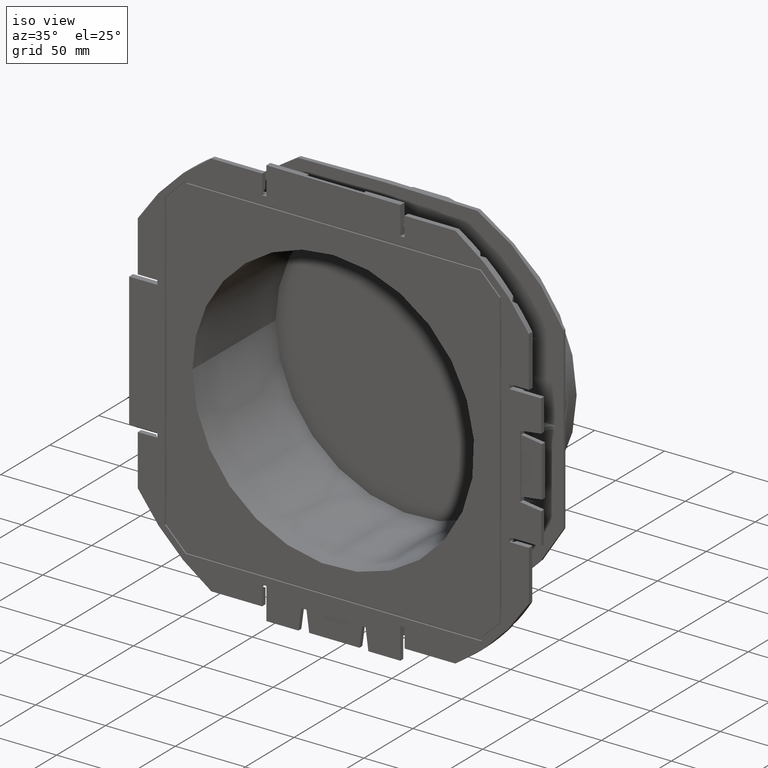
[diagram: clean part render]
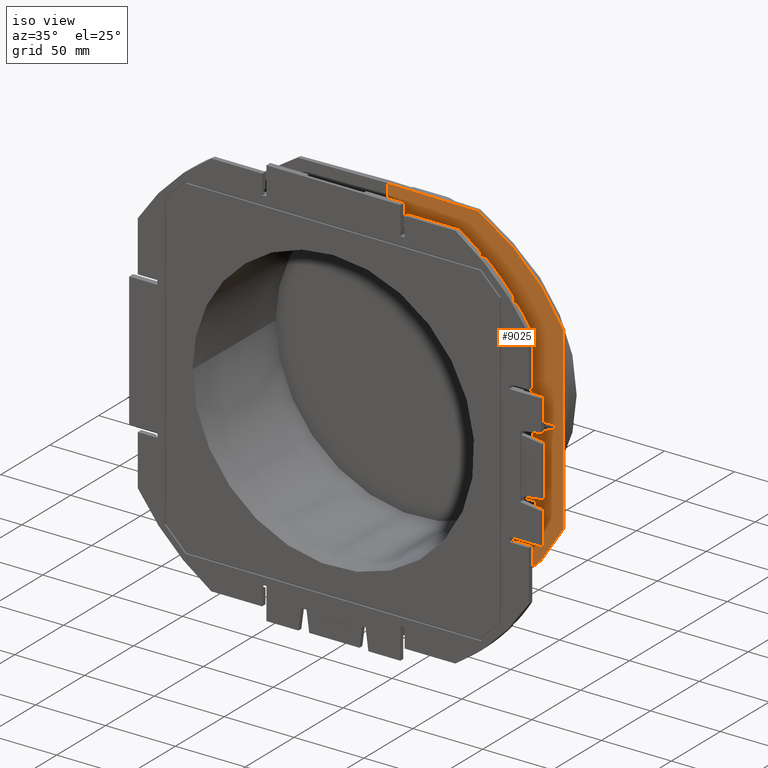
[diagram: same view with one face highlighted and labeled with its STEP entity id]
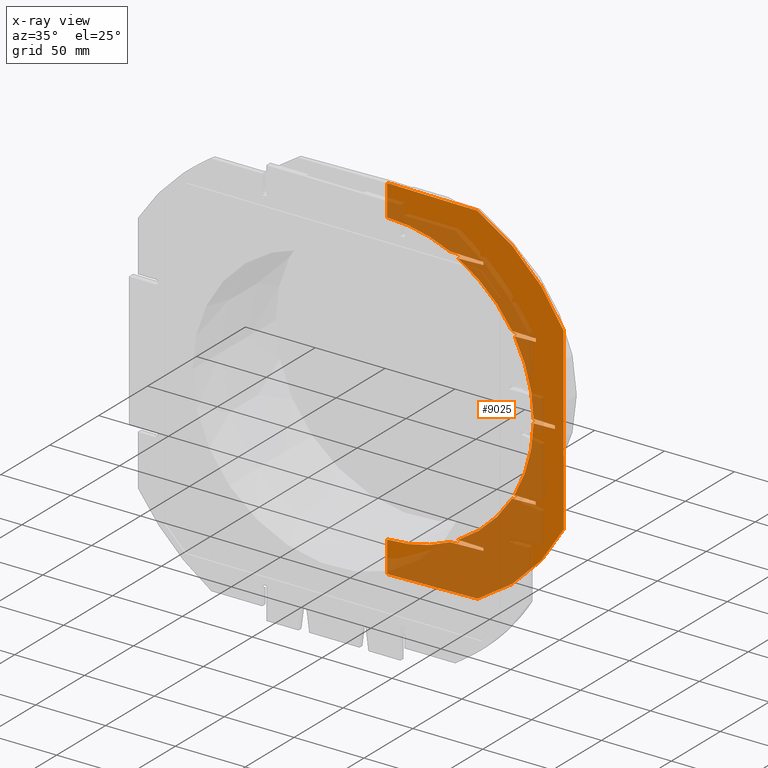
[diagram: x-ray of the same camera — body ghosted, the highlighted face saturated]
A machine part, iso view. The second image highlights one B-rep face of the part: STEP entity #9025.
The next image is the same camera in x-ray: the body ghosted, the highlighted face saturated — about 54% of this face is hidden behind the body in this view.
In plain terms, the highlighted planar face has unit normal (0.0087, -1, 0).
Its self-contained STEP definition (entity closure, byte-faithful):
#387=ELLIPSE('',#9682,104.153965863875,104.15);
#389=ELLIPSE('',#9684,104.153965863875,104.15);
#391=ELLIPSE('',#9686,104.153965863875,104.15);
#393=ELLIPSE('',#9688,104.153965863875,104.15);
#395=ELLIPSE('',#9690,104.153965863875,104.15);
#397=ELLIPSE('',#9692,104.153965863875,104.15);
#401=ELLIPSE('',#9716,141.005369052389,141.);
#402=ELLIPSE('',#9717,141.005369052389,141.);
#717=FACE_OUTER_BOUND('',#1218,.T.);
#1218=EDGE_LOOP('',(#6307,#6308,#6309,#6310,#6311,#6312,#6313,#6314,#6315,
#6316,#6317,#6318,#6319,#6320,#6321,#6322,#6323,#6324,#6325,#6326,#6327,
#6328,#6329,#6330,#6331,#6332,#6333,#6334));
#1941=LINE('',#15762,#2800);
#1955=LINE('',#15800,#2814);
#1992=LINE('',#15910,#2851);
#1997=LINE('',#15918,#2856);
#1998=LINE('',#15920,#2857);
#2001=LINE('',#15928,#2860);
#2005=LINE('',#15934,#2864);
#2007=LINE('',#15939,#2866);
#2008=LINE('',#15943,#2867);
#2009=LINE('',#15946,#2868);
#2010=LINE('',#15948,#2869);
#2011=LINE('',#15950,#2870);
#2012=LINE('',#15951,#2871);
#2013=LINE('',#15953,#2872);
#2014=LINE('',#15955,#2873);
#2015=LINE('',#15956,#2874);
#2016=LINE('',#15958,#2875);
#2017=LINE('',#15960,#2876);
#2018=LINE('',#15961,#2877);
#2019=LINE('',#15962,#2878);
#2800=VECTOR('',#10867,10.);
#2814=VECTOR('',#10893,10.);
#2851=VECTOR('',#10996,10.);
#2856=VECTOR('',#11003,10.);
#2857=VECTOR('',#11006,10.);
#2860=VECTOR('',#11013,10.);
#2864=VECTOR('',#11019,10.);
#2866=VECTOR('',#11025,10.);
#2867=VECTOR('',#11028,10.);
#2868=VECTOR('',#11031,10.);
#2869=VECTOR('',#11032,10.);
#2870=VECTOR('',#11033,10.);
#2871=VECTOR('',#11034,10.);
#2872=VECTOR('',#11035,10.);
#2873=VECTOR('',#11036,10.);
#2874=VECTOR('',#11037,10.);
#2875=VECTOR('',#11038,10.);
#2876=VECTOR('',#11039,10.);
#2877=VECTOR('',#11040,10.);
#2878=VECTOR('',#11041,10.);
#3890=VERTEX_POINT('',#15759);
#3891=VERTEX_POINT('',#15761);
#3908=VERTEX_POINT('',#15797);
#3909=VERTEX_POINT('',#15799);
#3918=VERTEX_POINT('',#15821);
#3921=VERTEX_POINT('',#15827);
#3922=VERTEX_POINT('',#15829);
#3925=VERTEX_POINT('',#15835);
#3926=VERTEX_POINT('',#15837);
#3929=VERTEX_POINT('',#15843);
#3930=VERTEX_POINT('',#15845);
#3933=VERTEX_POINT('',#15851);
#3934=VERTEX_POINT('',#15853);
#3937=VERTEX_POINT('',#15859);
#3948=VERTEX_POINT('',#15908);
#3949=VERTEX_POINT('',#15909);
#3953=VERTEX_POINT('',#15925);
#3954=VERTEX_POINT('',#15927);
#3956=VERTEX_POINT('',#15938);
#3957=VERTEX_POINT('',#15940);
#3958=VERTEX_POINT('',#15942);
#3959=VERTEX_POINT('',#15944);
#3960=VERTEX_POINT('',#15947);
#3961=VERTEX_POINT('',#15949);
#3962=VERTEX_POINT('',#15952);
#3963=VERTEX_POINT('',#15954);
#3964=VERTEX_POINT('',#15957);
#3965=VERTEX_POINT('',#15959);
#4793=EDGE_CURVE('',#3891,#3890,#1941,.T.);
#4813=EDGE_CURVE('',#3909,#3908,#1955,.T.);
#4825=EDGE_CURVE('',#3918,#3891,#387,.T.);
#4829=EDGE_CURVE('',#3922,#3921,#389,.T.);
#4833=EDGE_CURVE('',#3926,#3925,#391,.T.);
#4837=EDGE_CURVE('',#3930,#3929,#393,.T.);
#4841=EDGE_CURVE('',#3934,#3933,#395,.T.);
#4845=EDGE_CURVE('',#3908,#3937,#397,.T.);
#4870=EDGE_CURVE('',#3948,#3949,#1992,.T.);
#4875=EDGE_CURVE('',#3949,#3918,#1997,.T.);
#4876=EDGE_CURVE('',#3921,#3948,#1998,.T.);
#4879=EDGE_CURVE('',#3954,#3953,#2001,.T.);
#4883=EDGE_CURVE('',#3953,#3922,#2005,.T.);
#4885=EDGE_CURVE('',#3956,#3890,#2007,.T.);
#4886=EDGE_CURVE('',#3956,#3957,#401,.T.);
#4887=EDGE_CURVE('',#3957,#3958,#2008,.T.);
#4888=EDGE_CURVE('',#3958,#3959,#402,.T.);
#4889=EDGE_CURVE('',#3959,#3909,#2009,.T.);
#4890=EDGE_CURVE('',#3937,#3960,#2010,.T.);
#4891=EDGE_CURVE('',#3961,#3960,#2011,.T.);
#4892=EDGE_CURVE('',#3961,#3934,#2012,.T.);
#4893=EDGE_CURVE('',#3933,#3962,#2013,.T.);
#4894=EDGE_CURVE('',#3963,#3962,#2014,.T.);
#4895=EDGE_CURVE('',#3963,#3930,#2015,.T.);
#4896=EDGE_CURVE('',#3929,#3964,#2016,.T.);
#4897=EDGE_CURVE('',#3965,#3964,#2017,.T.);
#4898=EDGE_CURVE('',#3965,#3926,#2018,.T.);
#4899=EDGE_CURVE('',#3925,#3954,#2019,.T.);
#6307=ORIENTED_EDGE('',*,*,#4870,.T.);
#6308=ORIENTED_EDGE('',*,*,#4875,.T.);
#6309=ORIENTED_EDGE('',*,*,#4825,.T.);
#6310=ORIENTED_EDGE('',*,*,#4793,.T.);
#6311=ORIENTED_EDGE('',*,*,#4885,.F.);
#6312=ORIENTED_EDGE('',*,*,#4886,.T.);
#6313=ORIENTED_EDGE('',*,*,#4887,.T.);
#6314=ORIENTED_EDGE('',*,*,#4888,.T.);
#6315=ORIENTED_EDGE('',*,*,#4889,.T.);
#6316=ORIENTED_EDGE('',*,*,#4813,.T.);
#6317=ORIENTED_EDGE('',*,*,#4845,.T.);
#6318=ORIENTED_EDGE('',*,*,#4890,.T.);
#6319=ORIENTED_EDGE('',*,*,#4891,.F.);
#6320=ORIENTED_EDGE('',*,*,#4892,.T.);
#6321=ORIENTED_EDGE('',*,*,#4841,.T.);
#6322=ORIENTED_EDGE('',*,*,#4893,.T.);
#6323=ORIENTED_EDGE('',*,*,#4894,.F.);
#6324=ORIENTED_EDGE('',*,*,#4895,.T.);
#6325=ORIENTED_EDGE('',*,*,#4837,.T.);
#6326=ORIENTED_EDGE('',*,*,#4896,.T.);
#6327=ORIENTED_EDGE('',*,*,#4897,.F.);
#6328=ORIENTED_EDGE('',*,*,#4898,.T.);
#6329=ORIENTED_EDGE('',*,*,#4833,.T.);
#6330=ORIENTED_EDGE('',*,*,#4899,.T.);
#6331=ORIENTED_EDGE('',*,*,#4879,.T.);
#6332=ORIENTED_EDGE('',*,*,#4883,.T.);
#6333=ORIENTED_EDGE('',*,*,#4829,.T.);
#6334=ORIENTED_EDGE('',*,*,#4876,.T.);
#8203=PLANE('',#9715);
#9025=ADVANCED_FACE('',(#717),#8203,.T.);
#9682=AXIS2_PLACEMENT_3D('',#15822,#10912,#10913);
#9684=AXIS2_PLACEMENT_3D('',#15830,#10918,#10919);
#9686=AXIS2_PLACEMENT_3D('',#15838,#10924,#10925);
#9688=AXIS2_PLACEMENT_3D('',#15846,#10930,#10931);
#9690=AXIS2_PLACEMENT_3D('',#15854,#10936,#10937);
#9692=AXIS2_PLACEMENT_3D('',#15861,#10942,#10943);
#9715=AXIS2_PLACEMENT_3D('',#15937,#11023,#11024);
#9716=AXIS2_PLACEMENT_3D('',#15941,#11026,#11027);
#9717=AXIS2_PLACEMENT_3D('',#15945,#11029,#11030);
#10867=DIRECTION('',(0.,0.,-1.));
#10893=DIRECTION('',(0.,0.,-1.));
#10912=DIRECTION('center_axis',(-0.00872653549837393,0.999961923064171,
0.));
#10913=DIRECTION('ref_axis',(0.999961923064171,0.00872653549837394,0.));
#10918=DIRECTION('center_axis',(-0.00872653549837393,0.999961923064171,
0.));
#10919=DIRECTION('ref_axis',(0.999961923064171,0.00872653549837394,0.));
#10924=DIRECTION('center_axis',(-0.00872653549837393,0.999961923064171,
0.));
#10925=DIRECTION('ref_axis',(0.999961923064171,0.00872653549837394,0.));
#10930=DIRECTION('center_axis',(-0.00872653549837393,0.999961923064171,
0.));
#10931=DIRECTION('ref_axis',(0.999961923064171,0.00872653549837394,0.));
#10936=DIRECTION('center_axis',(-0.00872653549837393,0.999961923064171,
0.));
#10937=DIRECTION('ref_axis',(0.999961923064171,0.00872653549837394,0.));
#10942=DIRECTION('center_axis',(-0.00872653549837393,0.999961923064171,
0.));
#10943=DIRECTION('ref_axis',(0.999961923064171,0.00872653549837394,0.));
#10996=DIRECTION('',(0.,0.,-1.));
#11003=DIRECTION('',(-0.999619287168872,-0.00872354536021529,-0.0261759522528506));
#11006=DIRECTION('',(0.999619287168872,0.00872354536021529,-0.0261759522528506));
#11013=DIRECTION('',(0.,0.,-1.));
#11019=DIRECTION('',(-0.999619287168872,-0.00872354536021529,-0.0261759522528506));
#11023=DIRECTION('center_axis',(0.00872653549837393,-0.999961923064171,
0.));
#11024=DIRECTION('ref_axis',(0.,0.,-1.));
#11025=DIRECTION('',(-0.999840915465112,-0.00872547948105527,-0.0155566631933738));
#11026=DIRECTION('center_axis',(0.00872653549837393,-0.999961923064171,
0.));
#11027=DIRECTION('ref_axis',(0.999961923064171,0.00872653549837393,0.));
#11028=DIRECTION('',(0.,0.,1.));
#11029=DIRECTION('center_axis',(0.00872653549837393,-0.999961923064171,
0.));
#11030=DIRECTION('ref_axis',(0.999961923064171,0.00872653549837393,0.));
#11031=DIRECTION('',(-0.999840915465112,-0.00872547948105527,0.0155566631933738));
#11032=DIRECTION('',(0.999619287168872,0.00872354536021529,-0.0261759522528506));
#11033=DIRECTION('',(0.,0.,1.));
#11034=DIRECTION('',(-0.999619287168872,-0.00872354536021529,-0.0261759522528506));
#11035=DIRECTION('',(0.999619287168872,0.00872354536021529,-0.0261759522528506));
#11036=DIRECTION('',(0.,0.,1.));
#11037=DIRECTION('',(-0.999619287168872,-0.00872354536021529,-0.0261759522528506));
#11038=DIRECTION('',(0.999619287168872,0.00872354536021529,-0.0261759522528506));
#11039=DIRECTION('',(0.,0.,1.));
#11040=DIRECTION('',(-0.999619287168872,-0.00872354536021529,-0.0261759522528506));
#11041=DIRECTION('',(0.999619287168872,0.00872354536021529,-0.0261759522528506));
#15759=CARTESIAN_POINT('',(0.,-33.5,-126.5));
#15761=CARTESIAN_POINT('',(0.,-33.5,-104.15));
#15762=CARTESIAN_POINT('',(0.,-33.5,61.2875));
#15797=CARTESIAN_POINT('',(0.,-33.5,104.15));
#15799=CARTESIAN_POINT('',(0.,-33.5,126.5));
#15800=CARTESIAN_POINT('',(0.,-33.5,61.2875));
#15821=CARTESIAN_POINT('',(44.7168728099717,-33.1097617629712,-94.0618083288686));
#15822=CARTESIAN_POINT('Origin',(0.,-33.5,0.));
#15827=CARTESIAN_POINT('',(50.5467067559935,-33.0588855728822,-91.0618083288686));
#15829=CARTESIAN_POINT('',(88.9133905706157,-32.7240645956621,-54.2368092464624));
#15830=CARTESIAN_POINT('Origin',(0.,-33.5,0.));
#15835=CARTESIAN_POINT('',(90.6753101910417,-32.7086885560767,-51.2368092464624));
#15837=CARTESIAN_POINT('',(104.139197711525,-32.5911909897358,-1.5));
#15838=CARTESIAN_POINT('Origin',(0.,-33.5,0.));
#15843=CARTESIAN_POINT('',(104.139197711525,-32.5911909897358,1.5));
#15845=CARTESIAN_POINT('',(90.6753101910417,-32.7086885560767,51.2368092464623));
#15846=CARTESIAN_POINT('Origin',(0.,-33.5,0.));
#15851=CARTESIAN_POINT('',(88.9133905706157,-32.7240645956621,54.2368092464623));
#15853=CARTESIAN_POINT('',(50.5467067559935,-33.0588855728822,91.0618083288686));
#15854=CARTESIAN_POINT('Origin',(0.,-33.5,0.));
#15859=CARTESIAN_POINT('',(44.7168728099717,-33.1097617629712,94.0618083288686));
#15861=CARTESIAN_POINT('Origin',(0.,-33.5,0.));
#15908=CARTESIAN_POINT('',(68.4612152247442,-32.902548025939,-91.5309162425819));
#15909=CARTESIAN_POINT('',(68.4612152247442,-32.902548025939,-93.4400408406835));
#15910=CARTESIAN_POINT('',(68.4612152247442,-32.902548025939,15.0065958355657));
#15918=CARTESIAN_POINT('',(30.1080650068069,-33.23725089725,-94.4443534242216));
#15920=CARTESIAN_POINT('',(24.4817941719481,-33.2863506189808,-90.3792745722351));
#15925=CARTESIAN_POINT('',(105.82288365989,-32.5764976850633,-53.7940185866519));
#15927=CARTESIAN_POINT('',(105.82288365989,-32.5764976850633,-51.6334624172811));
#15928=CARTESIAN_POINT('',(105.82288365989,-32.5764976850633,34.9190953767688));
#15934=CARTESIAN_POINT('',(48.1523941590328,-33.0797804223656,-55.304173501578));
#15937=CARTESIAN_POINT('Origin',(0.,-33.5,122.575));
#15938=CARTESIAN_POINT('',(64.2709109940104,-32.9391162569637,-125.5));
#15939=CARTESIAN_POINT('',(34.0875368132574,-33.2025225729181,-125.96962729661));
#15940=CARTESIAN_POINT('',(125.5,-32.4047780922598,-64.2709109940103));
#15941=CARTESIAN_POINT('Origin',(0.,-33.5,0.));
#15942=CARTESIAN_POINT('',(125.5,-32.4047780922598,64.2709109940103));
#15943=CARTESIAN_POINT('',(125.5,-32.4047780922598,29.1520445029948));
#15944=CARTESIAN_POINT('',(64.2709109940104,-32.9391162569637,125.5));
#15945=CARTESIAN_POINT('Origin',(0.,-33.5,0.));
#15946=CARTESIAN_POINT('',(32.1809821739461,-33.2191608231912,125.999291644132));
#15947=CARTESIAN_POINT('',(68.4612152247442,-32.902548025939,93.4400408406835));
#15948=CARTESIAN_POINT('',(26.9007691831368,-33.2652405438691,94.5283394211094));
#15949=CARTESIAN_POINT('',(68.4612152247442,-32.902548025939,91.5309162425818));
#15950=CARTESIAN_POINT('',(68.4612152247442,-32.902548025939,107.568404164434));
#15951=CARTESIAN_POINT('',(27.6890899956183,-33.2583609723618,90.4632605691229));
#15952=CARTESIAN_POINT('',(105.82288365989,-32.5764976850633,53.7940185866519));
#15953=CARTESIAN_POINT('',(44.9450983353627,-33.1077700689846,55.3881594984658));
#15954=CARTESIAN_POINT('',(105.82288365989,-32.5764976850633,51.6334624172811));
#15955=CARTESIAN_POINT('',(105.82288365989,-32.5764976850633,87.6559046232312));
#15956=CARTESIAN_POINT('',(46.7733889844174,-33.0918148182073,50.087196981009));
#15957=CARTESIAN_POINT('',(119.383475042478,-32.458156196903,1.10081454943272));
#15958=CARTESIAN_POINT('',(50.9931074509922,-33.0549898930352,2.89167935127122));
#15959=CARTESIAN_POINT('',(119.383475042478,-32.4581561969029,-1.10081454943274));
#15960=CARTESIAN_POINT('',(119.383475042478,-32.458156196903,61.2875));
#15961=CARTESIAN_POINT('',(54.2004032746623,-33.0270002464162,-2.80769335438343));
#15962=CARTESIAN_POINT('',(43.5660931607473,-33.1198044648263,-50.0032109841213));